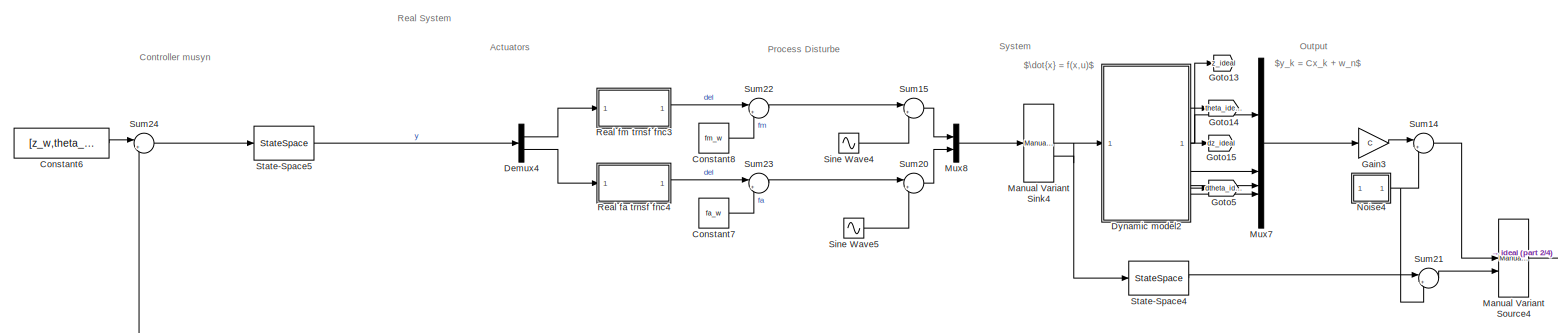
[diagram: root canvas - part 1/4, top center region]
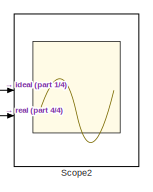
[diagram: root canvas - part 2/4, top right region]
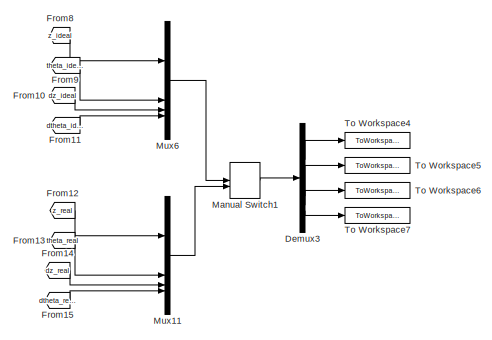
[diagram: root canvas - part 3/4, middle right region]
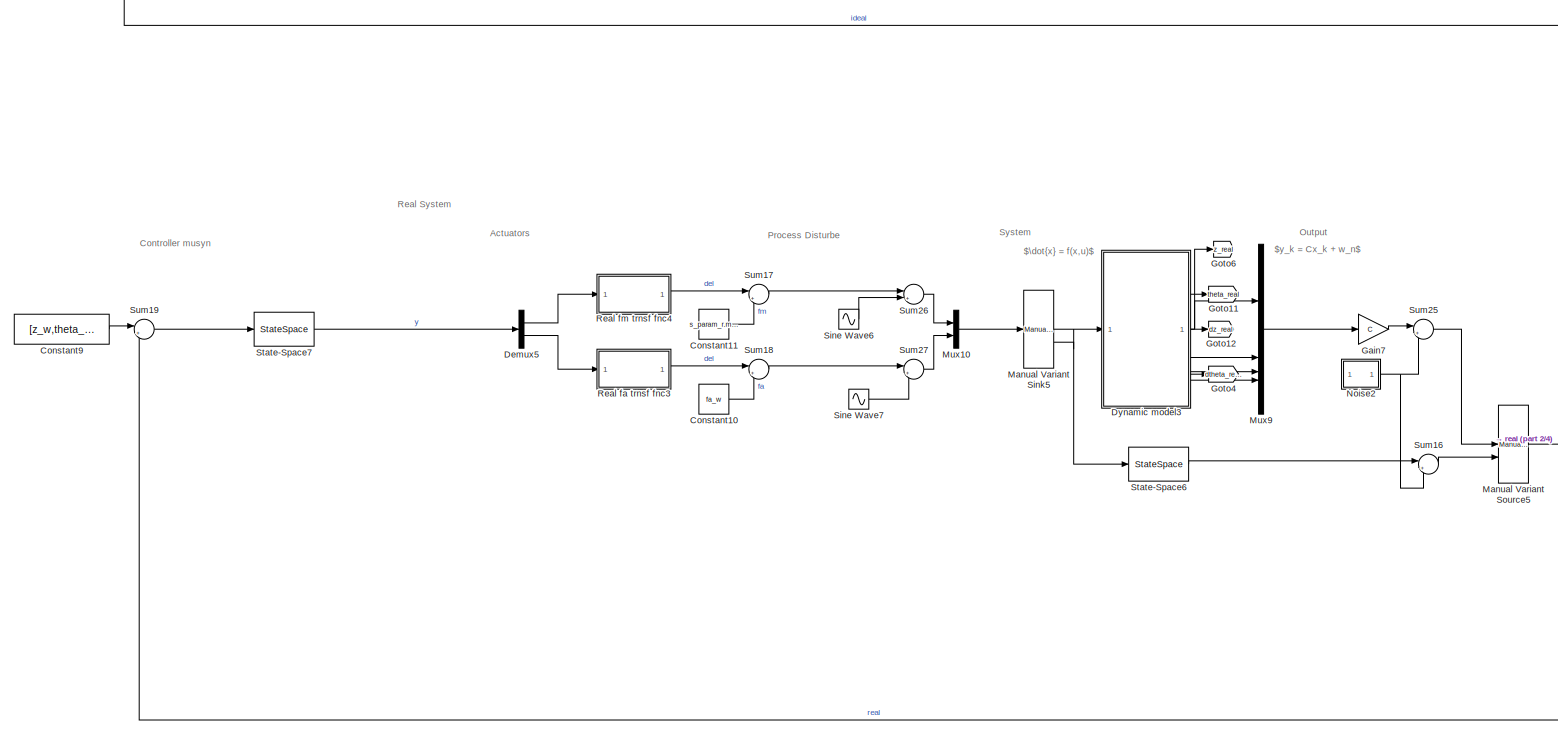
[diagram: root canvas - part 4/4, bottom center region]
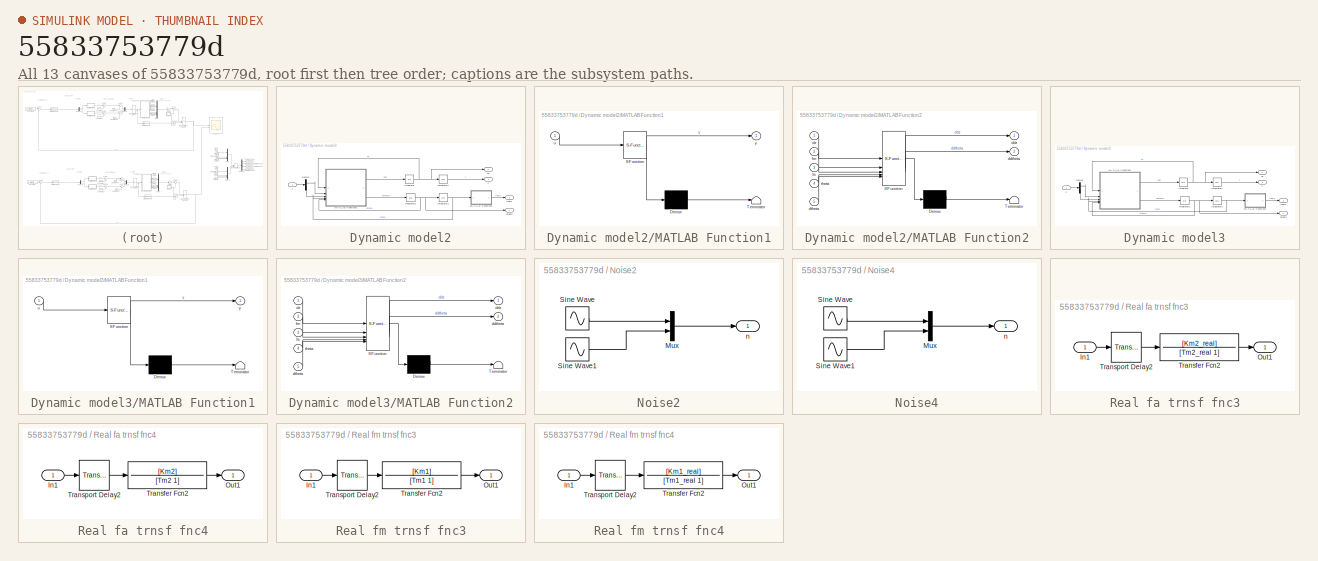
[diagram: thumbnail index - all 13 canvases of the model, root first then tree order]
MODEL slx_55833753779d
KIND model
CONFIG AbsTol = auto
CONFIG EnableMultiTasking = off
CONFIG FixedStep = auto
CONFIG InitFcn = %Hinf_init
CONFIG MaxStep = auto
CONFIG MinStep = auto
CONFIG RelTol = 1e-3
CONFIG SampleTimeConstraint = Unconstrained
CONFIG SolverName = VariableStepAuto
CONFIG StartTime = 0.0
CONFIG StopTime = 100
BLOCK [Constant] Constant10
  Value = fa_w
BLOCK [Constant] Constant11
  Value = s_param_r.m*s_param.g
BLOCK [Constant] Constant6
  Value = [z_w,theta_w]
BLOCK [Constant] Constant7
  Value = fa_w
BLOCK [Constant] Constant8
  Value = fm_w
BLOCK [Constant] Constant9
  Value = [z_w,theta_w]
BLOCK [Demux] Demux3
BLOCK [Demux] Demux4
  Outputs = 2
BLOCK [Demux] Demux5
  Outputs = 2
BLOCK [SubSystem] Dynamic model2
BLOCK [Demux] Dynamic model2/Demux
  Outputs = 2
BLOCK [Integrator] Dynamic model2/Integrator
  InitialCondition = dz_0
BLOCK [Integrator] Dynamic model2/Integrator1
  InitialCondition = z_0_real
BLOCK [Integrator] Dynamic model2/Integrator2
  InitialCondition = dtheta_0
BLOCK [Integrator] Dynamic model2/Integrator3
  InitialCondition = theta_0_real
BLOCK [SubSystem] Dynamic model2/MATLAB Function1
  ErrorFcn = Stateflow.Translate.translate
  PermitHierarchicalResolution = ExplicitOnly
  SFBlockType = MATLAB Function
  TreatAsAtomicUnit = on
BLOCK [Demux] Dynamic model2/MATLAB Function1/ Demux 
  Outputs = 1
BLOCK [S-Function] Dynamic model2/MATLAB Function1/ SFunction 
  EnableBusSupport = on
  FunctionName = sf_sfun
  PortCounts = [1 2]
  SFcnIsStateOwnerBlock = off
  SFunctionDeploymentMode = off
  Tag = Stateflow S-Function 4
BLOCK [Terminator] Dynamic model2/MATLAB Function1/ Terminator 
BLOCK [Inport] Dynamic model2/MATLAB Function1/u
BLOCK [Outport] Dynamic model2/MATLAB Function1/y
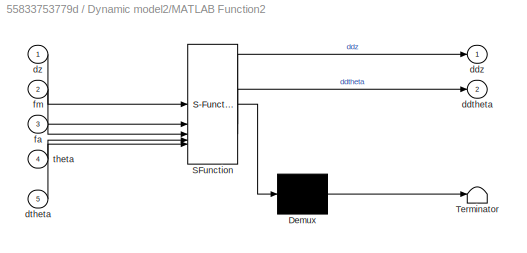
BLOCK [SubSystem] Dynamic model2/MATLAB Function2
  ErrorFcn = Stateflow.Translate.translate
  PermitHierarchicalResolution = ExplicitOnly
  SFBlockType = MATLAB Function
  TreatAsAtomicUnit = on
BLOCK [Demux] Dynamic model2/MATLAB Function2/ Demux 
  Outputs = 1
BLOCK [S-Function] Dynamic model2/MATLAB Function2/ SFunction 
  EnableBusSupport = on
  FunctionName = sf_sfun
  Parameters = s_param
  PortCounts = [5 3]
  SFcnIsStateOwnerBlock = off
  SFunctionDeploymentMode = off
  Tag = Stateflow S-Function 5
BLOCK [Terminator] Dynamic model2/MATLAB Function2/ Terminator 
BLOCK [Outport] Dynamic model2/MATLAB Function2/ddtheta
  Port = 2
BLOCK [Outport] Dynamic model2/MATLAB Function2/ddz
BLOCK [Inport] Dynamic model2/MATLAB Function2/dtheta
  Port = 5
BLOCK [Inport] Dynamic model2/MATLAB Function2/dz
BLOCK [Inport] Dynamic model2/MATLAB Function2/fa
  Port = 3
BLOCK [Inport] Dynamic model2/MATLAB Function2/fm
  Port = 2
BLOCK [Inport] Dynamic model2/MATLAB Function2/theta
  Port = 4
BLOCK [Outport] Dynamic model2/dtheta
  Port = 4
BLOCK [Outport] Dynamic model2/dz
  Port = 3
BLOCK [Outport] Dynamic model2/theta
  Port = 2
BLOCK [Inport] Dynamic model2/u
BLOCK [Outport] Dynamic model2/z
BLOCK [SubSystem] Dynamic model3
BLOCK [Demux] Dynamic model3/Demux
  Outputs = 2
BLOCK [Integrator] Dynamic model3/Integrator
  InitialCondition = dz_0
BLOCK [Integrator] Dynamic model3/Integrator1
  InitialCondition = z_0_real
BLOCK [Integrator] Dynamic model3/Integrator2
  InitialCondition = dtheta_0
BLOCK [Integrator] Dynamic model3/Integrator3
  InitialCondition = theta_0_real
BLOCK [SubSystem] Dynamic model3/MATLAB Function1
  ErrorFcn = Stateflow.Translate.translate
  PermitHierarchicalResolution = ExplicitOnly
  SFBlockType = MATLAB Function
  TreatAsAtomicUnit = on
BLOCK [Demux] Dynamic model3/MATLAB Function1/ Demux 
  Outputs = 1
BLOCK [S-Function] Dynamic model3/MATLAB Function1/ SFunction 
  EnableBusSupport = on
  FunctionName = sf_sfun
  PortCounts = [1 2]
  SFcnIsStateOwnerBlock = off
  SFunctionDeploymentMode = off
  Tag = Stateflow S-Function 6
BLOCK [Terminator] Dynamic model3/MATLAB Function1/ Terminator 
BLOCK [Inport] Dynamic model3/MATLAB Function1/u
BLOCK [Outport] Dynamic model3/MATLAB Function1/y
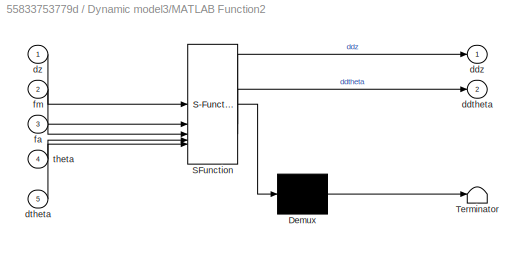
BLOCK [SubSystem] Dynamic model3/MATLAB Function2
  ErrorFcn = Stateflow.Translate.translate
  PermitHierarchicalResolution = ExplicitOnly
  SFBlockType = MATLAB Function
  TreatAsAtomicUnit = on
BLOCK [Demux] Dynamic model3/MATLAB Function2/ Demux 
  Outputs = 1
BLOCK [S-Function] Dynamic model3/MATLAB Function2/ SFunction 
  EnableBusSupport = on
  FunctionName = sf_sfun
  Parameters = s_param,s_param_r
  PortCounts = [5 3]
  SFcnIsStateOwnerBlock = off
  SFunctionDeploymentMode = off
  Tag = Stateflow S-Function 8
BLOCK [Terminator] Dynamic model3/MATLAB Function2/ Terminator 
BLOCK [Outport] Dynamic model3/MATLAB Function2/ddtheta
  Port = 2
BLOCK [Outport] Dynamic model3/MATLAB Function2/ddz
BLOCK [Inport] Dynamic model3/MATLAB Function2/dtheta
  Port = 5
BLOCK [Inport] Dynamic model3/MATLAB Function2/dz
BLOCK [Inport] Dynamic model3/MATLAB Function2/fa
  Port = 3
BLOCK [Inport] Dynamic model3/MATLAB Function2/fm
  Port = 2
BLOCK [Inport] Dynamic model3/MATLAB Function2/theta
  Port = 4
BLOCK [Outport] Dynamic model3/dtheta
  Port = 4
BLOCK [Outport] Dynamic model3/dz
  Port = 3
BLOCK [Outport] Dynamic model3/theta
  Port = 2
BLOCK [Inport] Dynamic model3/u
BLOCK [Outport] Dynamic model3/z
BLOCK [From] From10
  GotoTag = dz_ideal
BLOCK [From] From11
  GotoTag = dtheta_ideal
BLOCK [From] From12
  GotoTag = z_real
BLOCK [From] From13
  GotoTag = theta_real
BLOCK [From] From14
  GotoTag = dz_real
BLOCK [From] From15
  GotoTag = dtheta_real
BLOCK [From] From8
  GotoTag = z_ideal
BLOCK [From] From9
  GotoTag = theta_ideal
BLOCK [Gain] Gain3
  Gain = C
  Multiplication = Matrix(K*u)
BLOCK [Gain] Gain7
  Gain = C
  Multiplication = Matrix(K*u)
BLOCK [Goto] Goto11
  GotoTag = theta_real
BLOCK [Goto] Goto12
  GotoTag = dz_real
BLOCK [Goto] Goto13
  GotoTag = z_ideal
BLOCK [Goto] Goto14
  GotoTag = theta_ideal
BLOCK [Goto] Goto15
  GotoTag = dz_ideal
BLOCK [Goto] Goto4
  GotoTag = dtheta_real
BLOCK [Goto] Goto5
  GotoTag = dtheta_ideal
BLOCK [Goto] Goto6
  GotoTag = z_real
BLOCK [ManualSwitch] Manual Switch1
  CurrentSetting = 0
BLOCK [Reference] Manual Variant Sink4  REF=simulink/Signal
Routing/Manual
Variant Sink
  SourceBlock = simulink/Signal\nRouting/Manual\nVariant Sink
  SourceType = ManualVariantSink
BLOCK [Reference] Manual Variant Sink5  REF=simulink/Signal
Routing/Manual
Variant Sink
  SourceBlock = simulink/Signal\nRouting/Manual\nVariant Sink
  SourceType = ManualVariantSink
BLOCK [Reference] Manual Variant Source4  REF=simulink/Signal
Routing/Manual
Variant Source
  SourceBlock = simulink/Signal\nRouting/Manual\nVariant Source
  SourceType = ManualVariantSource
BLOCK [Reference] Manual Variant Source5  REF=simulink/Signal
Routing/Manual
Variant Source
  SourceBlock = simulink/Signal\nRouting/Manual\nVariant Source
  SourceType = ManualVariantSource
BLOCK [Mux] Mux10
  DisplayOption = bar
  Inputs = 2
BLOCK [Mux] Mux11
  DisplayOption = bar
BLOCK [Mux] Mux6
  DisplayOption = bar
BLOCK [Mux] Mux7
  DisplayOption = bar
BLOCK [Mux] Mux8
  DisplayOption = bar
  Inputs = 2
BLOCK [Mux] Mux9
  DisplayOption = bar
BLOCK [SubSystem] Noise2
BLOCK [Mux] Noise2/Mux
  DisplayOption = bar
  Inputs = 2
BLOCK [Sin] Noise2/Sine Wave
  Amplitude = randn(1,1)*std_dev.y1
  Frequency = omega_y1*10
  SampleTime = 0
BLOCK [Sin] Noise2/Sine Wave1
  Amplitude = randn(1,1)*std_dev.y2
  Frequency = omega_y2*10
  SampleTime = 0
BLOCK [Outport] Noise2/n
BLOCK [SubSystem] Noise4
BLOCK [Mux] Noise4/Mux
  DisplayOption = bar
  Inputs = 2
BLOCK [Sin] Noise4/Sine Wave
  Amplitude = randn(1,1)*std_dev.y1
  Frequency = omega_y1*10
  SampleTime = 0
BLOCK [Sin] Noise4/Sine Wave1
  Amplitude = randn(1,1)*std_dev.y2
  Frequency = omega_y2*10
  SampleTime = 0
BLOCK [Outport] Noise4/n
BLOCK [SubSystem] Real fa trnsf fnc3
BLOCK [Inport] Real fa trnsf fnc3/In1
BLOCK [Outport] Real fa trnsf fnc3/Out1
BLOCK [TransferFcn] Real fa trnsf fnc3/Transfer Fcn2
  Denominator = [Tm2_real 1]
  Numerator = [Km2_real]
BLOCK [TransportDelay] Real fa trnsf fnc3/Transport Delay2
  BufferSize = 600
  DelayTime = T2_real
BLOCK [SubSystem] Real fa trnsf fnc4
BLOCK [Inport] Real fa trnsf fnc4/In1
BLOCK [Outport] Real fa trnsf fnc4/Out1
BLOCK [TransferFcn] Real fa trnsf fnc4/Transfer Fcn2
  Denominator = [Tm2 1]
  Numerator = [Km2]
BLOCK [TransportDelay] Real fa trnsf fnc4/Transport Delay2
  DelayTime = T2
BLOCK [SubSystem] Real fm trnsf fnc3
BLOCK [Inport] Real fm trnsf fnc3/In1
BLOCK [Outport] Real fm trnsf fnc3/Out1
BLOCK [TransferFcn] Real fm trnsf fnc3/Transfer Fcn2
  Denominator = [Tm1 1]
  Numerator = [Km1]
BLOCK [TransportDelay] Real fm trnsf fnc3/Transport Delay2
  DelayTime = T1
BLOCK [SubSystem] Real fm trnsf fnc4
BLOCK [Inport] Real fm trnsf fnc4/In1
BLOCK [Outport] Real fm trnsf fnc4/Out1
BLOCK [TransferFcn] Real fm trnsf fnc4/Transfer Fcn2
  Denominator = [Tm1_real 1]
  Numerator = [Km1_real]
BLOCK [TransportDelay] Real fm trnsf fnc4/Transport Delay2
  DelayTime = T1_real
BLOCK [Scope] Scope2
  Floating = off
  NumInputPorts = 2
  ScopeSpecificationString = Simulink.scopes.TimeScopeBlockCfg('CurrentConfiguration', extmgr.ConfigurationSet(extmgr.Configuration('Core','General UI',true,'FigureColor',[1 1 1]),extmgr.Configuration('Core','Source UI',true),extmgr.Configuration('Sources','WiredSimulink',true,'DataLoggingVariableName','ScopeData1'),extmgr.Configuration('Visuals','Time Domain',true,'SerializedDisplays',{struct('MinYLimReal','-49.12512','MaxYL...<+1689ch>
BLOCK [Sin] Sine Wave4
  Amplitude = rand(1,1)*std_dev.fm
  Frequency = omega_d1
  SampleTime = 0
BLOCK [Sin] Sine Wave5
  Amplitude = rand(1,1)*std_dev.fa
  Frequency = omega_d2
  SampleTime = 0
BLOCK [Sin] Sine Wave6
  Amplitude = rand(1,1)*std_dev.fm
  Frequency = omega_d1
  SampleTime = 0
BLOCK [Sin] Sine Wave7
  Amplitude = rand(1,1)*std_dev.fa
  Frequency = omega_d2
  SampleTime = 0
BLOCK [StateSpace] State-Space4
  InitialCondition = 0
BLOCK [StateSpace] State-Space5
  A = K.A
  B = K.B
  C = K.C
  D = K.D
  InitialCondition = 0
BLOCK [StateSpace] State-Space6
  InitialCondition = 0
BLOCK [StateSpace] State-Space7
  A = K.A
  B = K.B
  C = K.C
  D = K.D
  InitialCondition = 0
BLOCK [Sum] Sum14
  Inputs = |++
BLOCK [Sum] Sum15
  Inputs = |++
BLOCK [Sum] Sum16
  Inputs = |++
BLOCK [Sum] Sum17
  Inputs = |++
BLOCK [Sum] Sum18
  Inputs = |++
BLOCK [Sum] Sum19
  Inputs = |+-
BLOCK [Sum] Sum20
  Inputs = |++
BLOCK [Sum] Sum21
  Inputs = |++
BLOCK [Sum] Sum22
  Inputs = |++
BLOCK [Sum] Sum23
  Inputs = |++
BLOCK [Sum] Sum24
  Inputs = |+-
BLOCK [Sum] Sum25
  Inputs = |++
BLOCK [Sum] Sum26
  Inputs = |++
BLOCK [Sum] Sum27
  Inputs = |++
BLOCK [ToWorkspace] To Workspace4
  FixptAsFi = on
  MaxDataPoints = inf
  SampleTime = -1
  SaveFormat = Timeseries
  VariableName = z
BLOCK [ToWorkspace] To Workspace5
  FixptAsFi = on
  MaxDataPoints = inf
  SampleTime = -1
  SaveFormat = Timeseries
  VariableName = theta
BLOCK [ToWorkspace] To Workspace6
  FixptAsFi = on
  MaxDataPoints = inf
  SampleTime = -1
  SaveFormat = Timeseries
  VariableName = dz
BLOCK [ToWorkspace] To Workspace7
  FixptAsFi = on
  MaxDataPoints = inf
  SampleTime = -1
  SaveFormat = Timeseries
  VariableName = dtheta
ANNOTATION (root): $\dot{x} = f(x,u)$
ANNOTATION (root): $y_k = Cx_k + w_n$
ANNOTATION (root): Actuators
ANNOTATION (root): Controller musyn
ANNOTATION (root): Output
ANNOTATION (root): Process Disturbe
ANNOTATION (root): Real System
ANNOTATION (root): System
LINE Constant10:1 -> Sum18:2
LINE Constant11:1 -> Sum17:2
LINE Constant6:1 -> Sum24:1
LINE Constant7:1 -> Sum23:2
LINE Constant8:1 -> Sum22:2
LINE Constant9:1 -> Sum19:1
LINE Demux3:1 -> To Workspace4:1
LINE Demux3:2 -> To Workspace5:1
LINE Demux3:3 -> To Workspace6:1
LINE Demux3:4 -> To Workspace7:1
LINE Demux4:1 -> Real fm trnsf fnc3:1
LINE Demux4:2 -> Real fa trnsf fnc4:1
LINE Demux5:1 -> Real fm trnsf fnc4:1
LINE Demux5:2 -> Real fa trnsf fnc3:1
LINE Dynamic model2/Demux:1 -> Dynamic model2/MATLAB Function2:2
LINE Dynamic model2/Demux:2 -> Dynamic model2/MATLAB Function2:3
LINE Dynamic model2/Integrator1:1 -> Dynamic model2/z:1
NET Dynamic model2/Integrator2:1 -> Dynamic model2/Integrator3:1, Dynamic model2/MATLAB Function2:5, Dynamic model2/dtheta:1
NET Dynamic model2/Integrator3:1 -> Dynamic model2/MATLAB Function1:1, Dynamic model2/MATLAB Function2:4
NET Dynamic model2/Integrator:1 -> Dynamic model2/Integrator1:1, Dynamic model2/MATLAB Function2:1, Dynamic model2/dz:1
LINE Dynamic model2/MATLAB Function1:1 -> Dynamic model2/theta:1
LINE Dynamic model2/MATLAB Function2:1 -> Dynamic model2/Integrator:1
LINE Dynamic model2/MATLAB Function2:2 -> Dynamic model2/Integrator2:1
LINE Dynamic model2/u:1 -> Dynamic model2/Demux:1
NET Dynamic model2:1 -> Goto13:1, Mux7:1
NET Dynamic model2:2 -> Goto14:1, Mux7:2
NET Dynamic model2:3 -> Goto15:1, Mux7:3
NET Dynamic model2:4 -> Goto5:1, Mux7:4
LINE Dynamic model3/Demux:1 -> Dynamic model3/MATLAB Function2:2
LINE Dynamic model3/Demux:2 -> Dynamic model3/MATLAB Function2:3
LINE Dynamic model3/Integrator1:1 -> Dynamic model3/z:1
NET Dynamic model3/Integrator2:1 -> Dynamic model3/Integrator3:1, Dynamic model3/MATLAB Function2:5, Dynamic model3/dtheta:1
NET Dynamic model3/Integrator3:1 -> Dynamic model3/MATLAB Function1:1, Dynamic model3/MATLAB Function2:4
NET Dynamic model3/Integrator:1 -> Dynamic model3/Integrator1:1, Dynamic model3/MATLAB Function2:1, Dynamic model3/dz:1
LINE Dynamic model3/MATLAB Function1:1 -> Dynamic model3/theta:1
LINE Dynamic model3/MATLAB Function2:1 -> Dynamic model3/Integrator:1
LINE Dynamic model3/MATLAB Function2:2 -> Dynamic model3/Integrator2:1
LINE Dynamic model3/u:1 -> Dynamic model3/Demux:1
NET Dynamic model3:1 -> Goto6:1, Mux9:1
NET Dynamic model3:2 -> Goto11:1, Mux9:2
NET Dynamic model3:3 -> Goto12:1, Mux9:3
NET Dynamic model3:4 -> Goto4:1, Mux9:4
LINE From10:1 -> Mux6:3
LINE From11:1 -> Mux6:4
LINE From12:1 -> Mux11:1
LINE From13:1 -> Mux11:2
LINE From14:1 -> Mux11:3
LINE From15:1 -> Mux11:4
LINE From8:1 -> Mux6:1
LINE From9:1 -> Mux6:2
LINE Gain3:1 -> Sum14:1
LINE Gain7:1 -> Sum25:1
LINE Manual Switch1:1 -> Demux3:1
LINE Manual Variant Sink4:1 -> Dynamic model2:1
LINE Manual Variant Sink4:2 -> State-Space4:1
LINE Manual Variant Sink5:1 -> Dynamic model3:1
LINE Manual Variant Sink5:2 -> State-Space6:1
NET Manual Variant Source4:1 -> Scope2:1, Sum24:2
NET Manual Variant Source5:1 -> Scope2:2, Sum19:2
LINE Mux10:1 -> Manual Variant Sink5:1
LINE Mux11:1 -> Manual Switch1:2
LINE Mux6:1 -> Manual Switch1:1
LINE Mux7:1 -> Gain3:1
LINE Mux8:1 -> Manual Variant Sink4:1
LINE Mux9:1 -> Gain7:1
LINE Noise2/Mux:1 -> Noise2/n:1
LINE Noise2/Sine Wave1:1 -> Noise2/Mux:2
LINE Noise2/Sine Wave:1 -> Noise2/Mux:1
NET Noise2:1 -> Sum16:2, Sum25:2
LINE Noise4/Mux:1 -> Noise4/n:1
LINE Noise4/Sine Wave1:1 -> Noise4/Mux:2
LINE Noise4/Sine Wave:1 -> Noise4/Mux:1
NET Noise4:1 -> Sum14:2, Sum21:2
LINE Real fa trnsf fnc3/In1:1 -> Real fa trnsf fnc3/Transport Delay2:1
LINE Real fa trnsf fnc3/Transfer Fcn2:1 -> Real fa trnsf fnc3/Out1:1
LINE Real fa trnsf fnc3/Transport Delay2:1 -> Real fa trnsf fnc3/Transfer Fcn2:1
LINE Real fa trnsf fnc3:1 -> Sum18:1
LINE Real fa trnsf fnc4/In1:1 -> Real fa trnsf fnc4/Transport Delay2:1
LINE Real fa trnsf fnc4/Transfer Fcn2:1 -> Real fa trnsf fnc4/Out1:1
LINE Real fa trnsf fnc4/Transport Delay2:1 -> Real fa trnsf fnc4/Transfer Fcn2:1
LINE Real fa trnsf fnc4:1 -> Sum23:1
LINE Real fm trnsf fnc3/In1:1 -> Real fm trnsf fnc3/Transport Delay2:1
LINE Real fm trnsf fnc3/Transfer Fcn2:1 -> Real fm trnsf fnc3/Out1:1
LINE Real fm trnsf fnc3/Transport Delay2:1 -> Real fm trnsf fnc3/Transfer Fcn2:1
LINE Real fm trnsf fnc3:1 -> Sum22:1
LINE Real fm trnsf fnc4/In1:1 -> Real fm trnsf fnc4/Transport Delay2:1
LINE Real fm trnsf fnc4/Transfer Fcn2:1 -> Real fm trnsf fnc4/Out1:1
LINE Real fm trnsf fnc4/Transport Delay2:1 -> Real fm trnsf fnc4/Transfer Fcn2:1
LINE Real fm trnsf fnc4:1 -> Sum17:1
LINE Sine Wave4:1 -> Sum15:2
LINE Sine Wave5:1 -> Sum20:2
LINE Sine Wave6:1 -> Sum26:2
LINE Sine Wave7:1 -> Sum27:2
LINE State-Space4:1 -> Sum21:1
LINE State-Space5:1 -> Demux4:1
LINE State-Space6:1 -> Sum16:1
LINE State-Space7:1 -> Demux5:1
LINE Sum14:1 -> Manual Variant Source4:1
LINE Sum15:1 -> Mux8:1
LINE Sum16:1 -> Manual Variant Source5:2
LINE Sum17:1 -> Sum26:1
LINE Sum18:1 -> Sum27:1
LINE Sum19:1 -> State-Space7:1
LINE Sum20:1 -> Mux8:2
LINE Sum21:1 -> Manual Variant Source4:2
LINE Sum22:1 -> Sum15:1
LINE Sum23:1 -> Sum20:1
LINE Sum24:1 -> State-Space5:1
LINE Sum25:1 -> Manual Variant Source5:1
LINE Sum26:1 -> Mux10:1
LINE Sum27:1 -> Mux10:2
note: NET lines group one-source signal fan-out (src -> all destinations, sorted); 1:1 wires keep LINE
CHART Dynamic model2/MATLAB Function1 states=1 transitions=1
  STATE_LABEL 'eML_blk_kernel()'
  STATE_LABEL 'SCRIPT:\nfunction y = fcn(u)\n\ny = atan2(sin(u), cos(u));\nend'
CHART Dynamic model2/MATLAB Function2 states=1 transitions=1
  STATE_LABEL 'eML_blk_kernel()'
  STATE_LABEL 'SCRIPT:\nfunction [ddz, ddtheta] = fcn(dz, fm, fa, theta, dtheta, s_param)\n\n% Rename params\nJ = s_param.J;     \nm = s_param.m;     \nb = s_param.b;      \nbeta = s_param.beta;    \ng = s_param.g;     \nl = s_param.l;   \n\n%% Dynamic equations\n\nddz = -b/m * dz + fm/m * cos(theta) -g;\nddtheta = -beta/J * dtheta + 2 * l/J * fa;\n\nend\n'
CHART Dynamic model3/MATLAB Function1 states=1 transitions=1
  STATE_LABEL 'eML_blk_kernel()'
  STATE_LABEL 'SCRIPT:\nfunction y = fcn(u)\n\ny = atan2(sin(u), cos(u));\nend'
CHART Dynamic model3/MATLAB Function2 states=1 transitions=1
  STATE_LABEL 'eML_blk_kernel()'
  STATE_LABEL 'SCRIPT:\nfunction [ddz, ddtheta] = fcn(dz, fm, fa, theta, dtheta, s_param, s_param_r)\n\n% Rename params\nJ = s_param_r.J;     \nm = s_param_r.m;     \nb = s_param_r.b;      \nbeta = s_param_r.beta;    \ng = s_param.g;     \nl = s_param_r.l;   \n\n%% Dynamic equations\n\nddz = -b/m * dz + fm/m * cos(theta) -g;\nddtheta = -beta/J * dtheta + 2 * l/J * fa;\n\nend\n'
CHART  states=0 transitions=0
CHART  states=0 transitions=0
CHART  states=0 transitions=0
CHART  states=0 transitions=0
